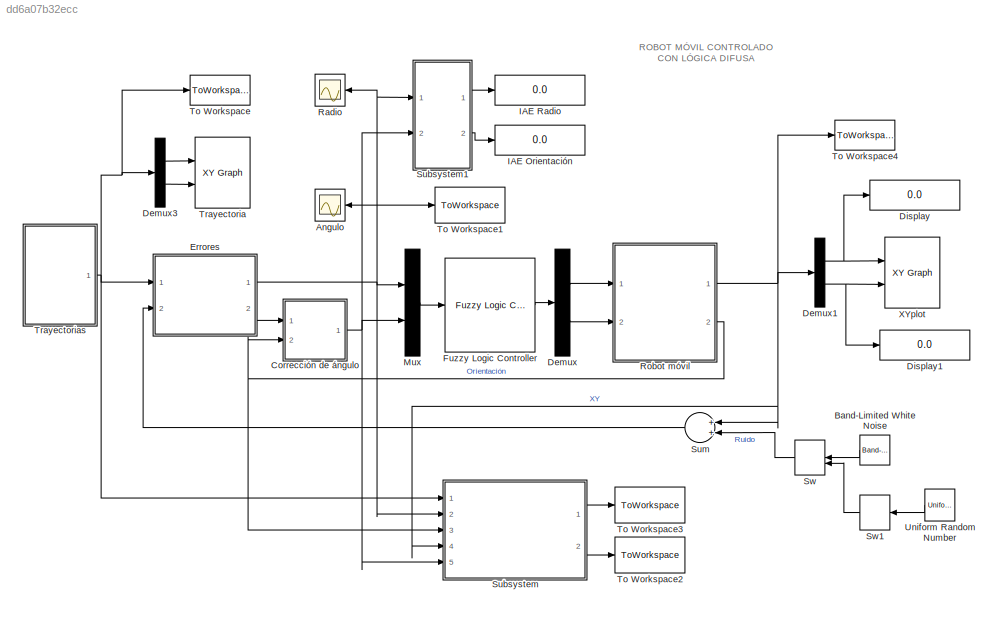
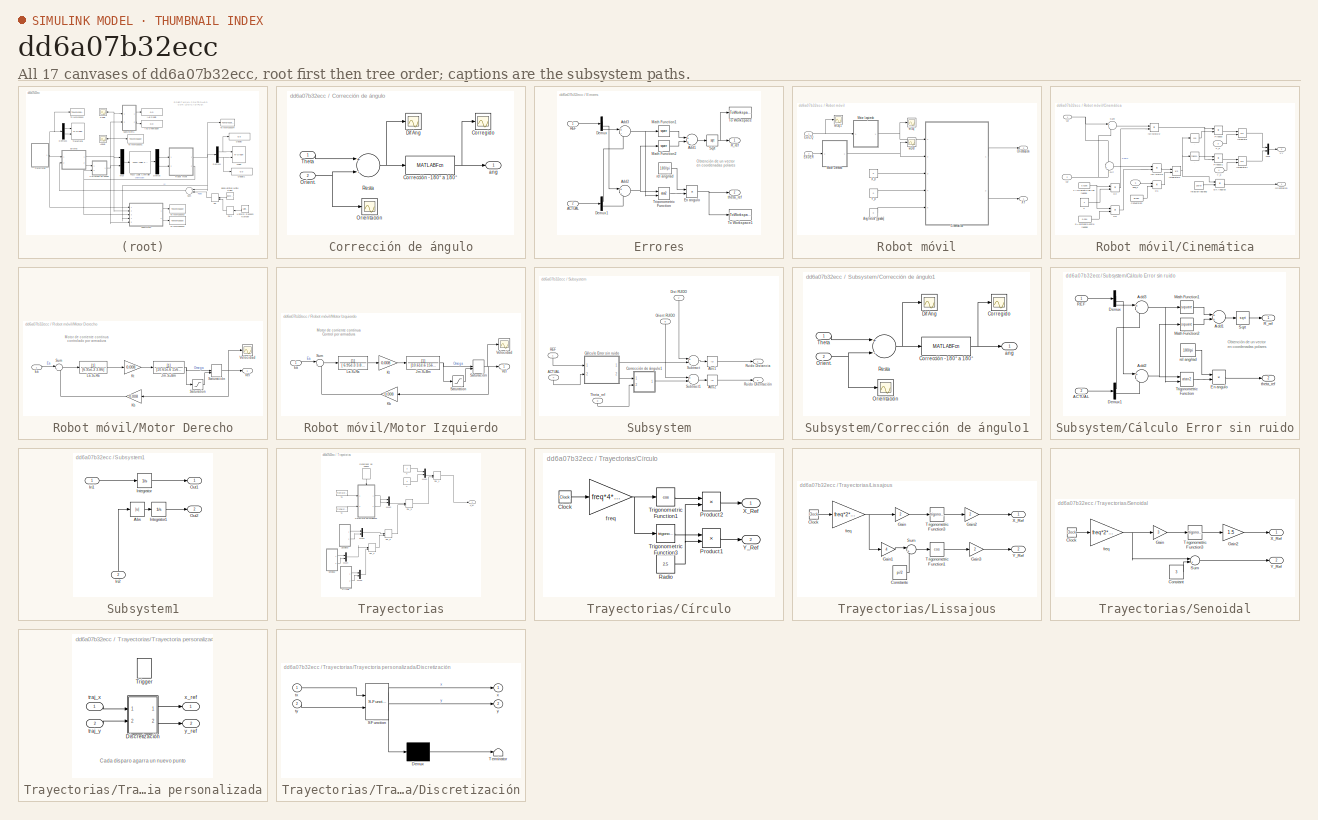
[diagram: thumbnail index - all 17 canvases of the model, root first then tree order]
MODEL slx_dd6a07b32ecc
KIND model
BLOCK [Scope] Angulo
  DataFormat = StructureWithTime
  Floating = off
  NumInputPorts = 1
  Ports = [1]
  SampleTime = 0
  SaveName = ScopeData9
  ShowLegends = off
  TimeRange = 5
  YMax = 50
  YMin = -10
  ZoomMode = yonly
BLOCK [Reference] Band-Limited White Noise  REF=simulink/Sources/Band-Limited
White Noise
  Cov = [0.003]
  Ports = [0, 1]
  SourceBlock = simulink/Sources/Band-Limited\nWhite Noise
  SourceType = Band-Limited White Noise.
  Ts = 0.1
  VectorParams1D = on
  seed = [23341]
BLOCK [SubSystem] Corrección de ángulo
  Ports = [2, 1]
  RequestExecContextInheritance = off
BLOCK [MATLABFcn] Corrección de ángulo/Corrección -180° a 180°
  MATLABFcn = mod(u+180, 360) - 180
  Ports = [1, 1]
BLOCK [Scope] Corrección de ángulo/Corregido
  DataFormat = StructureWithTime
  Floating = off
  NumInputPorts = 1
  Ports = [1]
  SampleTime = 0
  SaveName = ScopeData7
  ShowLegends = off
BLOCK [Scope] Corrección de ángulo/Dif Ang
  DataFormat = StructureWithTime
  Floating = off
  NumInputPorts = 1
  Ports = [1]
  SampleTime = 0
  SaveName = ScopeData4
  ShowLegends = off
BLOCK [Inport] Corrección de ángulo/Orient.
  IconDisplay = Port number
  Port = 2
BLOCK [Scope] Corrección de ángulo/Orientación
  DataFormat = StructureWithTime
  Floating = off
  NumInputPorts = 1
  Ports = [1]
  SampleTime = 0
  ShowLegends = off
  TimeRange = 0.4
  YMax = -38
  YMin = -45
  ZoomMode = xonly
BLOCK [Sum] Corrección de ángulo/Resta
  InputSameDT = off
  Inputs = +-
  OutDataTypeStr = Inherit: Inherit via internal rule
  Ports = [2, 1]
  SaturateOnIntegerOverflow = off
BLOCK [Inport] Corrección de ángulo/Theta
  IconDisplay = Port number
BLOCK [Outport] Corrección de ángulo/ang
  IconDisplay = Port number
BLOCK [Demux] Demux
  DisplayOption = bar
  Outputs = 2
  Ports = [1, 2]
BLOCK [Demux] Demux1
  DisplayOption = bar
  Outputs = 2
  Ports = [1, 2]
BLOCK [Demux] Demux3
  DisplayOption = bar
  Outputs = 2
  Ports = [1, 2]
BLOCK [Display] Display
  Decimation = 1
  Ports = [1]
BLOCK [Display] Display1
  Decimation = 1
  Ports = [1]
BLOCK [SubSystem] Errores
  Ports = [2, 2]
  RequestExecContextInheritance = off
BLOCK [Inport] Errores/ACTUAL
  IconDisplay = Port number
  Port = 2
BLOCK [Sum] Errores/Add1
  InputSameDT = off
  OutDataTypeStr = Inherit: Inherit via internal rule
  Ports = [2, 1]
  SaturateOnIntegerOverflow = off
BLOCK [Sum] Errores/Add2
  IconShape = round
  InputSameDT = off
  Inputs = +-
  OutDataTypeStr = Inherit: Inherit via internal rule
  Ports = [2, 1]
  SaturateOnIntegerOverflow = off
BLOCK [Sum] Errores/Add3
  IconShape = round
  InputSameDT = off
  Inputs = +-
  OutDataTypeStr = Inherit: Inherit via internal rule
  Ports = [2, 1]
  SaturateOnIntegerOverflow = off
BLOCK [Demux] Errores/Demux
  DisplayOption = bar
  Outputs = 2
  Ports = [1, 2]
BLOCK [Demux] Errores/Demux1
  DisplayOption = bar
  Outputs = 2
  Ports = [1, 2]
BLOCK [Product] Errores/En angulo
  InputSameDT = off
  OutDataTypeStr = Inherit: Inherit via internal rule
  Ports = [2, 1]
  RndMeth = Floor
  SaturateOnIntegerOverflow = off
BLOCK [Math] Errores/Math Function1
  Operator = square
  Ports = [1, 1]
BLOCK [Math] Errores/Math Function2
  Operator = square
  Ports = [1, 1]
BLOCK [Inport] Errores/REF
  IconDisplay = Port number
BLOCK [Outport] Errores/R_ref
  IconDisplay = Port number
BLOCK [Sqrt] Errores/Sqrt
BLOCK [ToWorkspace] Errores/To Workspace
  FixptAsFi = on
  MaxDataPoints = inf
  Ports = [1]
  SampleTime = -1
  Save2DSignal = 3-D array (concatenate along third dimension)
  SaveFormat = Timeseries
  VariableName = R_Ref
BLOCK [ToWorkspace] Errores/To Workspace1
  FixptAsFi = on
  MaxDataPoints = inf
  Ports = [1]
  SampleTime = -1
  Save2DSignal = 3-D array (concatenate along third dimension)
  SaveFormat = Timeseries
  VariableName = Theta_Ref
BLOCK [Trigonometry] Errores/Trigonometric Function
  Operator = atan2
  Ports = [2, 1]
BLOCK [Constant] Errores/rel ang//rad
  Value = 180/pi
BLOCK [Outport] Errores/theta_ref
  IconDisplay = Port number
  Port = 2
BLOCK [Reference] Fuzzy Logic Controller  REF=fuzblock/Fuzzy Logic   (lib defined in mdl_858b3b3e7478)
Controller
  Ports = [1, 1]
  SourceBlock = fuzblock/Fuzzy Logic \nController
  SourceType = FIS
  fis = 'MRFL_rev33.fis'
BLOCK [Display] IAE Orientación 
  Decimation = 1
  Ports = [1]
BLOCK [Display] IAE Radio
  Decimation = 1
  Ports = [1]
BLOCK [Mux] Mux
  DisplayOption = bar
  Inputs = 2
  Ports = [2, 1]
BLOCK [Scope] Radio
  DataFormat = StructureWithTime
  Floating = off
  NumInputPorts = 1
  Ports = [1]
  SampleTime = 0
  SaveName = ScopeData10
  ShowLegends = off
  TimeRange = 5
  YMin = 0
BLOCK [SubSystem] Robot móvil
  Ports = [2, 2]
  RequestExecContextInheritance = off
BLOCK [Constant] Robot móvil/Ang Inicial [grados]
  Value = 0
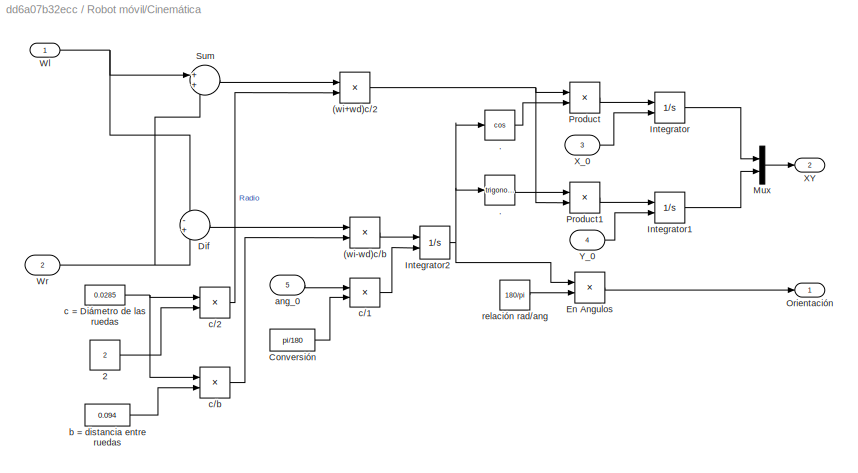
BLOCK [SubSystem] Robot móvil/Cinemática
  Description = Cinemática directa del robot diferencial
  Ports = [5, 2]
  RequestExecContextInheritance = off
BLOCK [Product] Robot móvil/Cinemática/(wi+wd)c//2
  InputSameDT = off
  OutDataTypeStr = Inherit: Inherit via internal rule
  Ports = [2, 1]
  SaturateOnIntegerOverflow = off
BLOCK [Product] Robot móvil/Cinemática/(wi-wd)c//b
  InputSameDT = off
  OutDataTypeStr = Inherit: Inherit via internal rule
  Ports = [2, 1]
  SaturateOnIntegerOverflow = off
BLOCK [Trigonometry] Robot móvil/Cinemática/.
  Ports = [1, 1]
BLOCK [Trigonometry] Robot móvil/Cinemática/. 
  Operator = cos
  Ports = [1, 1]
BLOCK [Constant] Robot móvil/Cinemática/2
  Value = 2
BLOCK [Constant] Robot móvil/Cinemática/Conversión
  Value = pi/180
BLOCK [Sum] Robot móvil/Cinemática/Dif
  IconShape = round
  InputSameDT = off
  Inputs = -+
  OutDataTypeStr = Inherit: Inherit via internal rule
  Ports = [2, 1]
  SaturateOnIntegerOverflow = off
BLOCK [Product] Robot móvil/Cinemática/En Angulos
  InputSameDT = off
  OutDataTypeStr = Inherit: Inherit via internal rule
  Ports = [2, 1]
  SaturateOnIntegerOverflow = off
BLOCK [Integrator] Robot móvil/Cinemática/Integrator
  InitialConditionSource = external
  Ports = [2, 1]
BLOCK [Integrator] Robot móvil/Cinemática/Integrator1
  InitialConditionSource = external
  Ports = [2, 1]
BLOCK [Integrator] Robot móvil/Cinemática/Integrator2
  InitialConditionSource = external
  Ports = [2, 1]
BLOCK [Mux] Robot móvil/Cinemática/Mux
  DisplayOption = bar
  Inputs = 2
  Ports = [2, 1]
BLOCK [Outport] Robot móvil/Cinemática/Orientación
  IconDisplay = Port number
BLOCK [Product] Robot móvil/Cinemática/Product
  InputSameDT = off
  OutDataTypeStr = Inherit: Inherit via internal rule
  Ports = [2, 1]
  SaturateOnIntegerOverflow = off
BLOCK [Product] Robot móvil/Cinemática/Product1
  InputSameDT = off
  OutDataTypeStr = Inherit: Inherit via internal rule
  Ports = [2, 1]
  SaturateOnIntegerOverflow = off
BLOCK [Sum] Robot móvil/Cinemática/Sum
  IconShape = round
  InputSameDT = off
  OutDataTypeStr = Inherit: Inherit via internal rule
  Ports = [2, 1]
  SaturateOnIntegerOverflow = off
BLOCK [Inport] Robot móvil/Cinemática/Wl
  IconDisplay = Port number
BLOCK [Inport] Robot móvil/Cinemática/Wr
  IconDisplay = Port number
  Port = 2
BLOCK [Outport] Robot móvil/Cinemática/XY
  IconDisplay = Port number
  Port = 2
BLOCK [Inport] Robot móvil/Cinemática/X_0
  IconDisplay = Port number
  Port = 3
BLOCK [Inport] Robot móvil/Cinemática/Y_0
  IconDisplay = Port number
  Port = 4
BLOCK [Inport] Robot móvil/Cinemática/ang_0
  IconDisplay = Port number
  Port = 5
BLOCK [Constant] Robot móvil/Cinemática/b = distancia entre ruedas
  Value = 0.094
BLOCK [Constant] Robot móvil/Cinemática/c = Diámetro de las ruedas
  Value = 0.0285
BLOCK [Product] Robot móvil/Cinemática/c//1
  InputSameDT = off
  Inputs = **
  OutDataTypeStr = Inherit: Inherit via internal rule
  Ports = [2, 1]
  RndMeth = Floor
  SaturateOnIntegerOverflow = off
BLOCK [Product] Robot móvil/Cinemática/c//2
  InputSameDT = off
  Inputs = */
  OutDataTypeStr = Inherit: Inherit via internal rule
  Ports = [2, 1]
  RndMeth = Floor
  SaturateOnIntegerOverflow = off
BLOCK [Product] Robot móvil/Cinemática/c//b
  InputSameDT = off
  Inputs = */
  OutDataTypeStr = Inherit: Inherit via internal rule
  Ports = [2, 1]
  RndMeth = Floor
  SaturateOnIntegerOverflow = off
BLOCK [Constant] Robot móvil/Cinemática/relación rad//ang 
  Value = 180/pi
BLOCK [Inport] Robot móvil/Ea DER
  IconDisplay = Port number
  Port = 2
BLOCK [Inport] Robot móvil/Ea IZQ
  IconDisplay = Port number
BLOCK [SubSystem] Robot móvil/Motor Derecho
  Ports = [1, 1]
  RequestExecContextInheritance = off
BLOCK [Inport] Robot móvil/Motor Derecho/Ea
  IconDisplay = Port number
BLOCK [TransferFcn] Robot móvil/Motor Derecho/Jm.S+Bm
  Denominator = [10.61e-6 156e-6]
BLOCK [Gain] Robot móvil/Motor Derecho/Kb
  Gain = 0.008
  OutDataTypeStr = Inherit: Inherit via internal rule
  ParamDataTypeStr = Inherit: Inherit via internal rule
  SaturateOnIntegerOverflow = off
BLOCK [Gain] Robot móvil/Motor Derecho/Kt
  Gain = 0.008
  OutDataTypeStr = Inherit: Inherit via internal rule
  ParamDataTypeStr = Inherit: Inherit via internal rule
  SaturateOnIntegerOverflow = off
BLOCK [TransferFcn] Robot móvil/Motor Derecho/La.S+Ra
  Denominator = [6.95e-3 3.86]
BLOCK [ManualSwitch] Robot móvil/Motor Derecho/Saturación
BLOCK [Saturate] Robot móvil/Motor Derecho/Saturation
  InputPortMap = u0
  LowerLimit = -30
  Ports = [1, 1]
  UpperLimit = 30
BLOCK [Sum] Robot móvil/Motor Derecho/Sum
  IconShape = round
  InputSameDT = off
  Inputs = |++
  OutDataTypeStr = Inherit: Inherit via internal rule
  Ports = [2, 1]
  SaturateOnIntegerOverflow = off
BLOCK [Outport] Robot móvil/Motor Derecho/Vel
  IconDisplay = Port number
BLOCK [Scope] Robot móvil/Motor Derecho/Velocidad
  DataFormat = StructureWithTime
  Floating = off
  NumInputPorts = 1
  Ports = [1]
  SampleTime = 0
  SaveName = ScopeData1
  ShowLegends = off
BLOCK [SubSystem] Robot móvil/Motor Izquierdo
  Ports = [1, 1]
  RequestExecContextInheritance = off
BLOCK [Inport] Robot móvil/Motor Izquierdo/Ea
  IconDisplay = Port number
BLOCK [TransferFcn] Robot móvil/Motor Izquierdo/Jm.S+Bm
  Denominator = [10.61e-6 156e-6]
BLOCK [Gain] Robot móvil/Motor Izquierdo/Kb
  Gain = 0.008
  OutDataTypeStr = Inherit: Inherit via internal rule
  ParamDataTypeStr = Inherit: Inherit via internal rule
  SaturateOnIntegerOverflow = off
BLOCK [Gain] Robot móvil/Motor Izquierdo/Kt
  Gain = 0.008
  OutDataTypeStr = Inherit: Inherit via internal rule
  ParamDataTypeStr = Inherit: Inherit via internal rule
  SaturateOnIntegerOverflow = off
BLOCK [TransferFcn] Robot móvil/Motor Izquierdo/La.S+Ra
  Denominator = [ 6.95e-3 3.86]
BLOCK [ManualSwitch] Robot móvil/Motor Izquierdo/Saturación
BLOCK [Saturate] Robot móvil/Motor Izquierdo/Saturation
  InputPortMap = u0
  LowerLimit = -30
  Ports = [1, 1]
  UpperLimit = 30
BLOCK [Sum] Robot móvil/Motor Izquierdo/Sum
  IconShape = round
  InputSameDT = off
  Inputs = |++
  OutDataTypeStr = Inherit: Inherit via internal rule
  Ports = [2, 1]
  SaturateOnIntegerOverflow = off
BLOCK [Outport] Robot móvil/Motor Izquierdo/Vel
  IconDisplay = Port number
BLOCK [Scope] Robot móvil/Motor Izquierdo/Velocidad
  DataFormat = StructureWithTime
  Floating = off
  NumInputPorts = 1
  Ports = [1]
  SampleTime = 0
  SaveName = ScopeData1
  ShowLegends = off
BLOCK [Outport] Robot móvil/Orientación
  IconDisplay = Port number
  Port = 2
BLOCK [Outport] Robot móvil/XY
  IconDisplay = Port number
BLOCK [Constant] Robot móvil/X_0 
  Value = 0
BLOCK [Constant] Robot móvil/Y_0
  Value = 0
BLOCK [Scope] Robot móvil/wDer
  DataFormat = StructureWithTime
  Floating = off
  NumInputPorts = 1
  Ports = [1]
  SampleTime = 0
  SaveName = ScopeData3
  ShowLegends = off
  TimeRange = 20
  YMax = 0.21448
  YMin = 0.194054
  ZoomMode = yonly
BLOCK [Scope] Robot móvil/wIzq 
  DataFormat = StructureWithTime
  Floating = off
  NumInputPorts = 1
  Ports = [1]
  SampleTime = 0
  SaveName = ScopeData2
  ShowLegends = off
  TimeRange = 20
  YMax = 0.21448
  YMin = 0.194054
BLOCK [Scope] Robot móvil/wIzq 1
  DataFormat = StructureWithTime
  Floating = off
  NumInputPorts = 1
  Ports = [1]
  SampleTime = 0
  SaveName = ScopeData8
  ShowLegends = off
  TimeRange = 20
  YMax = 3.25
  YMin = 0
BLOCK [SubSystem] Subsystem
  Ports = [5, 2]
  RequestExecContextInheritance = off
BLOCK [Inport] Subsystem/ACTUAL
  IconDisplay = Port number
  Port = 4
BLOCK [Abs] Subsystem/Abs1
  SaturateOnIntegerOverflow = off
BLOCK [Abs] Subsystem/Abs2
  SaturateOnIntegerOverflow = off
BLOCK [SubSystem] Subsystem/Corrección de ángulo1
  Ports = [2, 1]
  RequestExecContextInheritance = off
BLOCK [MATLABFcn] Subsystem/Corrección de ángulo1/Corrección -180° a 180°
  MATLABFcn = mod(u+180, 360) - 180
  Ports = [1, 1]
BLOCK [Scope] Subsystem/Corrección de ángulo1/Corregido
  DataFormat = StructureWithTime
  Floating = off
  NumInputPorts = 1
  Ports = [1]
  SampleTime = 0
  SaveName = ScopeData7
  ShowLegends = off
BLOCK [Scope] Subsystem/Corrección de ángulo1/Dif Ang
  DataFormat = StructureWithTime
  Floating = off
  NumInputPorts = 1
  Ports = [1]
  SampleTime = 0
  SaveName = ScopeData4
  ShowLegends = off
BLOCK [Inport] Subsystem/Corrección de ángulo1/Orient.
  IconDisplay = Port number
  Port = 2
BLOCK [Scope] Subsystem/Corrección de ángulo1/Orientación
  DataFormat = StructureWithTime
  Floating = off
  NumInputPorts = 1
  Ports = [1]
  SampleTime = 0
  ShowLegends = off
  TimeRange = 0.4
  YMax = -38
  YMin = -45
  ZoomMode = xonly
BLOCK [Sum] Subsystem/Corrección de ángulo1/Resta
  InputSameDT = off
  Inputs = +-
  OutDataTypeStr = Inherit: Inherit via internal rule
  Ports = [2, 1]
  SaturateOnIntegerOverflow = off
BLOCK [Inport] Subsystem/Corrección de ángulo1/Theta
  IconDisplay = Port number
BLOCK [Outport] Subsystem/Corrección de ángulo1/ang
  IconDisplay = Port number
BLOCK [SubSystem] Subsystem/Cálculo Error sin ruido
  Ports = [2, 2]
  RequestExecContextInheritance = off
BLOCK [Inport] Subsystem/Cálculo Error sin ruido/ACTUAL
  IconDisplay = Port number
  Port = 2
BLOCK [Sum] Subsystem/Cálculo Error sin ruido/Add1
  InputSameDT = off
  OutDataTypeStr = Inherit: Inherit via internal rule
  Ports = [2, 1]
  SaturateOnIntegerOverflow = off
BLOCK [Sum] Subsystem/Cálculo Error sin ruido/Add2
  IconShape = round
  InputSameDT = off
  Inputs = +-
  OutDataTypeStr = Inherit: Inherit via internal rule
  Ports = [2, 1]
  SaturateOnIntegerOverflow = off
BLOCK [Sum] Subsystem/Cálculo Error sin ruido/Add3
  IconShape = round
  InputSameDT = off
  Inputs = +-
  OutDataTypeStr = Inherit: Inherit via internal rule
  Ports = [2, 1]
  SaturateOnIntegerOverflow = off
BLOCK [Demux] Subsystem/Cálculo Error sin ruido/Demux
  DisplayOption = bar
  Outputs = 2
  Ports = [1, 2]
BLOCK [Demux] Subsystem/Cálculo Error sin ruido/Demux1
  DisplayOption = bar
  Outputs = 2
  Ports = [1, 2]
BLOCK [Product] Subsystem/Cálculo Error sin ruido/En angulo
  InputSameDT = off
  OutDataTypeStr = Inherit: Inherit via internal rule
  Ports = [2, 1]
  RndMeth = Floor
  SaturateOnIntegerOverflow = off
BLOCK [Math] Subsystem/Cálculo Error sin ruido/Math Function1
  Operator = square
  Ports = [1, 1]
BLOCK [Math] Subsystem/Cálculo Error sin ruido/Math Function2
  Operator = square
  Ports = [1, 1]
BLOCK [Inport] Subsystem/Cálculo Error sin ruido/REF
  IconDisplay = Port number
BLOCK [Outport] Subsystem/Cálculo Error sin ruido/R_ref
  IconDisplay = Port number
BLOCK [Sqrt] Subsystem/Cálculo Error sin ruido/Sqrt
BLOCK [Trigonometry] Subsystem/Cálculo Error sin ruido/Trigonometric Function
  Operator = atan2
  Ports = [2, 1]
BLOCK [Constant] Subsystem/Cálculo Error sin ruido/rel ang//rad
  Value = 180/pi
BLOCK [Outport] Subsystem/Cálculo Error sin ruido/theta_ref
  IconDisplay = Port number
  Port = 2
BLOCK [Inport] Subsystem/Dist RUIDO
  IconDisplay = Port number
  Port = 2
BLOCK [Inport] Subsystem/Orient RUIDO
  IconDisplay = Port number
  Port = 5
BLOCK [Inport] Subsystem/REF
  IconDisplay = Port number
BLOCK [Outport] Subsystem/Ruido Distancia
  IconDisplay = Port number
BLOCK [Outport] Subsystem/Ruido Orientación
  IconDisplay = Port number
  Port = 2
BLOCK [Sum] Subsystem/Subtract
  InputSameDT = off
  Inputs = +-
  OutDataTypeStr = Inherit: Inherit via internal rule
  Ports = [2, 1]
  SaturateOnIntegerOverflow = off
BLOCK [Sum] Subsystem/Subtract1
  InputSameDT = off
  Inputs = +-
  OutDataTypeStr = Inherit: Inherit via internal rule
  Ports = [2, 1]
  SaturateOnIntegerOverflow = off
BLOCK [Inport] Subsystem/Theta_ref
  IconDisplay = Port number
  Port = 3
BLOCK [SubSystem] Subsystem1
  Ports = [2, 2]
  RequestExecContextInheritance = off
BLOCK [Abs] Subsystem1/Abs
  SaturateOnIntegerOverflow = off
BLOCK [Inport] Subsystem1/In1
  IconDisplay = Port number
BLOCK [Inport] Subsystem1/In2
  IconDisplay = Port number
  Port = 2
BLOCK [Integrator] Subsystem1/Integrator
  Ports = [1, 1]
BLOCK [Integrator] Subsystem1/Integrator1
  Ports = [1, 1]
BLOCK [Outport] Subsystem1/Out1
  IconDisplay = Port number
BLOCK [Outport] Subsystem1/Out2
  IconDisplay = Port number
  Port = 2
BLOCK [Sum] Sum
  InputSameDT = off
  OutDataTypeStr = Inherit: Inherit via internal rule
  Ports = [2, 1]
  SaturateOnIntegerOverflow = off
BLOCK [ManualSwitch] Sw
BLOCK [ManualSwitch] Sw1
  CurrentSetting = 0
BLOCK [ToWorkspace] To Workspace
  FixptAsFi = on
  MaxDataPoints = inf
  Ports = [1]
  SampleTime = -1
  Save2DSignal = 3-D array (concatenate along third dimension)
  SaveFormat = Timeseries
  VariableName = Trayectoria
BLOCK [ToWorkspace] To Workspace1
  FixptAsFi = on
  MaxDataPoints = inf
  Ports = [1]
  SampleTime = -1
  Save2DSignal = 3-D array (concatenate along third dimension)
  SaveFormat = Timeseries
  VariableName = AngCorregido
BLOCK [ToWorkspace] To Workspace2
  FixptAsFi = on
  MaxDataPoints = inf
  Ports = [1]
  SampleTime = -1
  Save2DSignal = 3-D array (concatenate along third dimension)
  SaveFormat = Timeseries
  VariableName = Ruido_Orient
BLOCK [ToWorkspace] To Workspace3
  FixptAsFi = on
  MaxDataPoints = inf
  Ports = [1]
  SampleTime = -1
  Save2DSignal = 3-D array (concatenate along third dimension)
  SaveFormat = Timeseries
  VariableName = Ruido_Dist
BLOCK [ToWorkspace] To Workspace4
  FixptAsFi = on
  MaxDataPoints = inf
  Ports = [1]
  SampleTime = -1
  Save2DSignal = 3-D array (concatenate along third dimension)
  SaveFormat = Timeseries
  VariableName = XY_Robot
BLOCK [Reference] Trayectoria   REF=simulink/Sinks/XY Graph
  Ports = [2]
  SourceBlock = simulink/Sinks/XY Graph
  SourceType = XY scope.
  st = -1
  xmax = 4
  xmin = -4
  ymax = 4
  ymin = -4
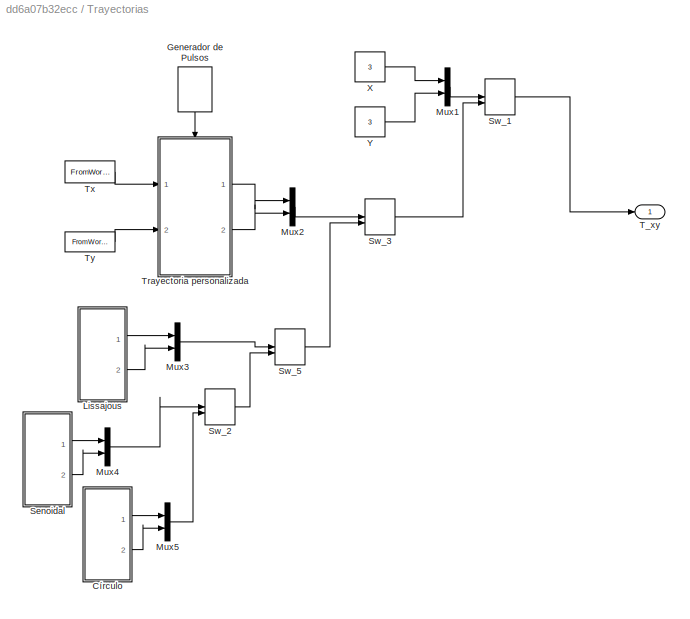
BLOCK [SubSystem] Trayectorias
  Ports = [0, 1]
  RequestExecContextInheritance = off
BLOCK [SubSystem] Trayectorias/Círculo
  AncestorBlock = roblocks/Trajectory/Circle
  Ports = [0, 2]
  RequestExecContextInheritance = off
BLOCK [Clock] Trayectorias/Círculo/Clock
BLOCK [Product] Trayectorias/Círculo/Product1
  InputSameDT = off
  OutDataTypeStr = Inherit: Inherit via internal rule
  Ports = [2, 1]
  RndMeth = Floor
  SaturateOnIntegerOverflow = off
BLOCK [Product] Trayectorias/Círculo/Product2
  InputSameDT = off
  OutDataTypeStr = Inherit: Inherit via internal rule
  Ports = [2, 1]
  RndMeth = Floor
  SaturateOnIntegerOverflow = off
BLOCK [Constant] Trayectorias/Círculo/Radio
  Value = 2.5
BLOCK [Trigonometry] Trayectorias/Círculo/Trigonometric Function1
  Operator = cos
  Ports = [1, 1]
BLOCK [Trigonometry] Trayectorias/Círculo/Trigonometric Function3
  Ports = [1, 1]
BLOCK [Outport] Trayectorias/Círculo/X_Ref
  IconDisplay = Port number
BLOCK [Outport] Trayectorias/Círculo/Y_Ref
  IconDisplay = Port number
  Port = 2
BLOCK [Gain] Trayectorias/Círculo/freq
  Gain = freq*4*2*pi
  OutDataTypeStr = Inherit: Inherit via internal rule
  ParamDataTypeStr = Inherit: Inherit via internal rule
  SaturateOnIntegerOverflow = off
BLOCK [DiscretePulseGenerator] Trayectorias/Generador de Pulsos  
  Period = 1
  Ports = [0, 1]
  PulseType = Time based
  PulseWidth = 50
BLOCK [SubSystem] Trayectorias/Lissajous
  AncestorBlock = roblocks/Trajectory/Circle
  Ports = [0, 2]
  RequestExecContextInheritance = off
BLOCK [Clock] Trayectorias/Lissajous/Clock
  DisplayTime = on
BLOCK [Constant] Trayectorias/Lissajous/Constante
  Value = pi/2
BLOCK [Gain] Trayectorias/Lissajous/Gain
  Gain = 2
  OutDataTypeStr = Inherit: Inherit via internal rule
  ParamDataTypeStr = Inherit: Inherit via internal rule
  SaturateOnIntegerOverflow = off
BLOCK [Gain] Trayectorias/Lissajous/Gain1
  Gain = 4
  OutDataTypeStr = Inherit: Inherit via internal rule
  ParamDataTypeStr = Inherit: Inherit via internal rule
  SaturateOnIntegerOverflow = off
BLOCK [Gain] Trayectorias/Lissajous/Gain2
  Gain = 2
  OutDataTypeStr = Inherit: Inherit via internal rule
  ParamDataTypeStr = Inherit: Inherit via internal rule
  SaturateOnIntegerOverflow = off
BLOCK [Gain] Trayectorias/Lissajous/Gain3
  Gain = 2
  OutDataTypeStr = Inherit: Inherit via internal rule
  ParamDataTypeStr = Inherit: Inherit via internal rule
  SaturateOnIntegerOverflow = off
BLOCK [Sum] Trayectorias/Lissajous/Sum
  IconShape = round
  InputSameDT = off
  Inputs = |++
  OutDataTypeStr = Inherit: Inherit via internal rule
  Ports = [2, 1]
  SaturateOnIntegerOverflow = off
BLOCK [Trigonometry] Trayectorias/Lissajous/Trigonometric Function1
  Operator = cos
  Ports = [1, 1]
BLOCK [Trigonometry] Trayectorias/Lissajous/Trigonometric Function3
  Ports = [1, 1]
BLOCK [Outport] Trayectorias/Lissajous/X_Ref
  IconDisplay = Port number
BLOCK [Outport] Trayectorias/Lissajous/Y_Ref
  IconDisplay = Port number
  Port = 2
BLOCK [Gain] Trayectorias/Lissajous/freq
  Gain = freq*2*pi
  OutDataTypeStr = Inherit: Inherit via internal rule
  ParamDataTypeStr = Inherit: Inherit via internal rule
  SaturateOnIntegerOverflow = off
BLOCK [Mux] Trayectorias/Mux1
  DisplayOption = bar
  Inputs = 2
  Ports = [2, 1]
BLOCK [Mux] Trayectorias/Mux2
  DisplayOption = bar
  Inputs = 2
  Ports = [2, 1]
BLOCK [Mux] Trayectorias/Mux3
  DisplayOption = bar
  Inputs = 2
  Ports = [2, 1]
BLOCK [Mux] Trayectorias/Mux4
  DisplayOption = bar
  Inputs = 2
  Ports = [2, 1]
BLOCK [Mux] Trayectorias/Mux5
  DisplayOption = bar
  Inputs = 2
  Ports = [2, 1]
BLOCK [SubSystem] Trayectorias/Senoidal
  AncestorBlock = roblocks/Trajectory/Circle
  Ports = [0, 2]
  RequestExecContextInheritance = off
BLOCK [Clock] Trayectorias/Senoidal/Clock
BLOCK [Constant] Trayectorias/Senoidal/Constant
  Value = 3
BLOCK [Gain] Trayectorias/Senoidal/Gain
  Gain = 3
  OutDataTypeStr = Inherit: Inherit via internal rule
  ParamDataTypeStr = Inherit: Inherit via internal rule
  SaturateOnIntegerOverflow = off
BLOCK [Gain] Trayectorias/Senoidal/Gain2
  Gain = 1.5
  OutDataTypeStr = Inherit: Inherit via internal rule
  ParamDataTypeStr = Inherit: Inherit via internal rule
  SaturateOnIntegerOverflow = off
BLOCK [Sum] Trayectorias/Senoidal/Sum
  IconShape = round
  InputSameDT = off
  Inputs = |+-
  OutDataTypeStr = Inherit: Inherit via internal rule
  Ports = [2, 1]
  SaturateOnIntegerOverflow = off
BLOCK [Trigonometry] Trayectorias/Senoidal/Trigonometric Function3
  Ports = [1, 1]
BLOCK [Outport] Trayectorias/Senoidal/X_Ref
  IconDisplay = Port number
BLOCK [Outport] Trayectorias/Senoidal/Y_Ref
  IconDisplay = Port number
  Port = 2
BLOCK [Gain] Trayectorias/Senoidal/freq
  Gain = freq*2*pi
  OutDataTypeStr = Inherit: Inherit via internal rule
  ParamDataTypeStr = Inherit: Inherit via internal rule
  SaturateOnIntegerOverflow = off
BLOCK [ManualSwitch] Trayectorias/Sw_1
BLOCK [ManualSwitch] Trayectorias/Sw_2
  CurrentSetting = 0
BLOCK [ManualSwitch] Trayectorias/Sw_3
BLOCK [ManualSwitch] Trayectorias/Sw_5
  CurrentSetting = 0
BLOCK [Outport] Trayectorias/T_xy
  IconDisplay = Port number
BLOCK [SubSystem] Trayectorias/Trayectoria personalizada
  Ports = [2, 2, 0, 1]
  RequestExecContextInheritance = off
BLOCK [SubSystem] Trayectorias/Trayectoria personalizada/Discretización
  ErrorFcn = Stateflow.Translate.translate
  PermitHierarchicalResolution = ExplicitOnly
  Ports = [2, 2]
  RequestExecContextInheritance = off
  SFBlockType = MATLAB Function
  TreatAsAtomicUnit = on
BLOCK [Demux] Trayectorias/Trayectoria personalizada/Discretización/ Demux 
  Outputs = 1
  Ports = [1, 1]
BLOCK [S-Function] Trayectorias/Trayectoria personalizada/Discretización/ SFunction 
  EnableBusSupport = on
  FunctionName = sf_sfun
  PortCounts = [2 3]
  Ports = [2, 3]
  Tag = Stateflow S-Function FuzzyLogicRobot_rev3 4
BLOCK [Terminator] Trayectorias/Trayectoria personalizada/Discretización/ Terminator 
BLOCK [Inport] Trayectorias/Trayectoria personalizada/Discretización/tx
  IconDisplay = Port number
BLOCK [Inport] Trayectorias/Trayectoria personalizada/Discretización/ty
  IconDisplay = Port number
  Port = 2
BLOCK [Outport] Trayectorias/Trayectoria personalizada/Discretización/x
  IconDisplay = Port number
BLOCK [Outport] Trayectorias/Trayectoria personalizada/Discretización/y
  IconDisplay = Port number
  Port = 2
BLOCK [TriggerPort] Trayectorias/Trayectoria personalizada/Trigger
  Ports = []
  StatesWhenEnabling = held
BLOCK [Inport] Trayectorias/Trayectoria personalizada/traj_x
  IconDisplay = Port number
BLOCK [Inport] Trayectorias/Trayectoria personalizada/traj_y
  IconDisplay = Port number
  Port = 2
BLOCK [Outport] Trayectorias/Trayectoria personalizada/x_ref
  IconDisplay = Port number
BLOCK [Outport] Trayectorias/Trayectoria personalizada/y_ref
  IconDisplay = Port number
  Port = 2
BLOCK [FromWorkspace] Trayectorias/Tx
  SampleTime = 0
  VariableName = trayx
  ZeroCross = on
BLOCK [FromWorkspace] Trayectorias/Ty
  SampleTime = 0
  VariableName = trayy
  ZeroCross = on
BLOCK [Constant] Trayectorias/X
  Value = 3
BLOCK [Constant] Trayectorias/Y
  Value = 3
BLOCK [UniformRandomNumber] Uniform Random Number
  SampleTime = 0.1
BLOCK [Reference] XYplot  REF=simulink/Sinks/XY Graph
  Ports = [2]
  SourceBlock = simulink/Sinks/XY Graph
  SourceType = XY scope.
  st = -1
  xmax = 4
  xmin = -4
  ymax = 4
  ymin = -4
ANNOTATION (root): ROBOT MÓVIL CONTROLADO CON LÓGICA DIFUSA
ANNOTATION Errores: Obtención de un vector en coordenadas polares
ANNOTATION Robot móvil/Motor Derecho: Motor de corriente continua controlado por armadura
ANNOTATION Robot móvil/Motor Izquierdo: Motor de corriente continua Control por armadura
ANNOTATION Subsystem/Cálculo Error sin ruido: Obtención de un vector en coordenadas polares
ANNOTATION Trayectorias/Trayectoria personalizada: Cada disparo agarra un nuevo punto
LINE Band-Limited White Noise:1 -> Sw:1
NET Corrección de ángulo/Corrección -180° a 180°:1 -> Corrección de ángulo/Corregido:1, Corrección de ángulo/ang:1
NET Corrección de ángulo/Orient.:1 -> Corrección de ángulo/Orientación:1, Corrección de ángulo/Resta:2
NET Corrección de ángulo/Resta:1 -> Corrección de ángulo/Corrección -180° a 180°:1, Corrección de ángulo/Dif Ang:1
LINE Corrección de ángulo/Theta:1 -> Corrección de ángulo/Resta:1
NET Corrección de ángulo:1 -> Angulo:1, Mux:2, Subsystem1:2, Subsystem:5, To Workspace1:1
NET Demux1:1 -> Display:1, XYplot:1
NET Demux1:2 -> Display1:1, XYplot:2
LINE Demux3:1 -> Trayectoria :1
LINE Demux3:2 -> Trayectoria :2
LINE Demux:1 -> Robot móvil:1
LINE Demux:2 -> Robot móvil:2
LINE Errores/ACTUAL:1 -> Errores/Demux1:1
LINE Errores/Add1:1 -> Errores/Sqrt:1
NET Errores/Add2:1 -> Errores/Math Function2:1, Errores/Trigonometric Function:1
NET Errores/Add3:1 -> Errores/Math Function1:1, Errores/Trigonometric Function:2
LINE Errores/Demux1:1 -> Errores/Add3:2
LINE Errores/Demux1:2 -> Errores/Add2:2
LINE Errores/Demux:1 -> Errores/Add3:1
LINE Errores/Demux:2 -> Errores/Add2:1
NET Errores/En angulo:1 -> Errores/To Workspace1:1, Errores/theta_ref:1
LINE Errores/Math Function1:1 -> Errores/Add1:1
LINE Errores/Math Function2:1 -> Errores/Add1:2
LINE Errores/REF:1 -> Errores/Demux:1
NET Errores/Sqrt:1 -> Errores/R_ref:1, Errores/To Workspace:1
LINE Errores/Trigonometric Function:1 -> Errores/En angulo:2
LINE Errores/rel ang//rad:1 -> Errores/En angulo:1
NET Errores:1 -> Mux:1, Radio:1, Subsystem1:1, Subsystem:2
LINE Errores:2 -> Corrección de ángulo:1
LINE Fuzzy Logic Controller:1 -> Demux:1
LINE Mux:1 -> Fuzzy Logic Controller:1
LINE Robot móvil/Ang Inicial [grados]:1 -> Robot móvil/Cinemática:5
NET Robot móvil/Cinemática/(wi+wd)c//2:1 -> Robot móvil/Cinemática/Product1:2, Robot móvil/Cinemática/Product:1
LINE Robot móvil/Cinemática/(wi-wd)c//b:1 -> Robot móvil/Cinemática/Integrator2:1
LINE Robot móvil/Cinemática/. :1 -> Robot móvil/Cinemática/Product:2
LINE Robot móvil/Cinemática/.:1 -> Robot móvil/Cinemática/Product1:1
LINE Robot móvil/Cinemática/2:1 -> Robot móvil/Cinemática/c//2:2
LINE Robot móvil/Cinemática/Conversión:1 -> Robot móvil/Cinemática/c//1:2
LINE Robot móvil/Cinemática/Dif:1 -> Robot móvil/Cinemática/(wi-wd)c//b:1
LINE Robot móvil/Cinemática/En Angulos:1 -> Robot móvil/Cinemática/Orientación:1
LINE Robot móvil/Cinemática/Integrator1:1 -> Robot móvil/Cinemática/Mux:2
NET Robot móvil/Cinemática/Integrator2:1 -> Robot móvil/Cinemática/. :1, Robot móvil/Cinemática/.:1, Robot móvil/Cinemática/En Angulos:1
LINE Robot móvil/Cinemática/Integrator:1 -> Robot móvil/Cinemática/Mux:1
LINE Robot móvil/Cinemática/Mux:1 -> Robot móvil/Cinemática/XY:1
LINE Robot móvil/Cinemática/Product1:1 -> Robot móvil/Cinemática/Integrator1:1
LINE Robot móvil/Cinemática/Product:1 -> Robot móvil/Cinemática/Integrator:1
LINE Robot móvil/Cinemática/Sum:1 -> Robot móvil/Cinemática/(wi+wd)c//2:1
NET Robot móvil/Cinemática/Wl:1 -> Robot móvil/Cinemática/Dif:1, Robot móvil/Cinemática/Sum:1
NET Robot móvil/Cinemática/Wr:1 -> Robot móvil/Cinemática/Dif:2, Robot móvil/Cinemática/Sum:2
LINE Robot móvil/Cinemática/X_0:1 -> Robot móvil/Cinemática/Integrator:2
LINE Robot móvil/Cinemática/Y_0:1 -> Robot móvil/Cinemática/Integrator1:2
LINE Robot móvil/Cinemática/ang_0:1 -> Robot móvil/Cinemática/c//1:1
LINE Robot móvil/Cinemática/b = distancia entre ruedas:1 -> Robot móvil/Cinemática/c//b:2
NET Robot móvil/Cinemática/c = Diámetro de las ruedas:1 -> Robot móvil/Cinemática/c//2:1, Robot móvil/Cinemática/c//b:1
LINE Robot móvil/Cinemática/c//1:1 -> Robot móvil/Cinemática/Integrator2:2
LINE Robot móvil/Cinemática/c//2:1 -> Robot móvil/Cinemática/(wi+wd)c//2:2
LINE Robot móvil/Cinemática/c//b:1 -> Robot móvil/Cinemática/(wi-wd)c//b:2
LINE Robot móvil/Cinemática/relación rad//ang :1 -> Robot móvil/Cinemática/En Angulos:2
LINE Robot móvil/Cinemática:1 -> Robot móvil/Orientación:1
LINE Robot móvil/Cinemática:2 -> Robot móvil/XY:1
LINE Robot móvil/Ea DER:1 -> Robot móvil/Motor Derecho:1
NET Robot móvil/Ea IZQ:1 -> Robot móvil/Motor Izquierdo:1, Robot móvil/wIzq 1:1
LINE Robot móvil/Motor Derecho/Ea:1 -> Robot móvil/Motor Derecho/Sum:1
NET Robot móvil/Motor Derecho/Jm.S+Bm:1 -> Robot móvil/Motor Derecho/Saturación:1, Robot móvil/Motor Derecho/Saturation:1
LINE Robot móvil/Motor Derecho/Kb:1 -> Robot móvil/Motor Derecho/Sum:2
LINE Robot móvil/Motor Derecho/Kt:1 -> Robot móvil/Motor Derecho/Jm.S+Bm:1
LINE Robot móvil/Motor Derecho/La.S+Ra:1 -> Robot móvil/Motor Derecho/Kt:1
NET Robot móvil/Motor Derecho/Saturación:1 -> Robot móvil/Motor Derecho/Kb:1, Robot móvil/Motor Derecho/Vel:1, Robot móvil/Motor Derecho/Velocidad:1
LINE Robot móvil/Motor Derecho/Saturation:1 -> Robot móvil/Motor Derecho/Saturación:2
LINE Robot móvil/Motor Derecho/Sum:1 -> Robot móvil/Motor Derecho/La.S+Ra:1
NET Robot móvil/Motor Derecho:1 -> Robot móvil/Cinemática:2, Robot móvil/wDer:1
LINE Robot móvil/Motor Izquierdo/Ea:1 -> Robot móvil/Motor Izquierdo/Sum:1
NET Robot móvil/Motor Izquierdo/Jm.S+Bm:1 -> Robot móvil/Motor Izquierdo/Saturación:1, Robot móvil/Motor Izquierdo/Saturation:1
LINE Robot móvil/Motor Izquierdo/Kb:1 -> Robot móvil/Motor Izquierdo/Sum:2
LINE Robot móvil/Motor Izquierdo/Kt:1 -> Robot móvil/Motor Izquierdo/Jm.S+Bm:1
LINE Robot móvil/Motor Izquierdo/La.S+Ra:1 -> Robot móvil/Motor Izquierdo/Kt:1
NET Robot móvil/Motor Izquierdo/Saturación:1 -> Robot móvil/Motor Izquierdo/Kb:1, Robot móvil/Motor Izquierdo/Vel:1, Robot móvil/Motor Izquierdo/Velocidad:1
LINE Robot móvil/Motor Izquierdo/Saturation:1 -> Robot móvil/Motor Izquierdo/Saturación:2
LINE Robot móvil/Motor Izquierdo/Sum:1 -> Robot móvil/Motor Izquierdo/La.S+Ra:1
NET Robot móvil/Motor Izquierdo:1 -> Robot móvil/Cinemática:1, Robot móvil/wIzq :1
LINE Robot móvil/X_0 :1 -> Robot móvil/Cinemática:3
LINE Robot móvil/Y_0:1 -> Robot móvil/Cinemática:4
NET Robot móvil:1 -> Demux1:1, Subsystem:4, Sum:1, To Workspace4:1
NET Robot móvil:2 -> Corrección de ángulo:2, Subsystem:3
LINE Subsystem/ACTUAL:1 -> Subsystem/Cálculo Error sin ruido:2
LINE Subsystem/Abs1:1 -> Subsystem/Ruido Distancia:1
LINE Subsystem/Abs2:1 -> Subsystem/Ruido Orientación:1
NET Subsystem/Corrección de ángulo1/Corrección -180° a 180°:1 -> Subsystem/Corrección de ángulo1/Corregido:1, Subsystem/Corrección de ángulo1/ang:1
NET Subsystem/Corrección de ángulo1/Orient.:1 -> Subsystem/Corrección de ángulo1/Orientación:1, Subsystem/Corrección de ángulo1/Resta:2
NET Subsystem/Corrección de ángulo1/Resta:1 -> Subsystem/Corrección de ángulo1/Corrección -180° a 180°:1, Subsystem/Corrección de ángulo1/Dif Ang:1
LINE Subsystem/Corrección de ángulo1/Theta:1 -> Subsystem/Corrección de ángulo1/Resta:1
LINE Subsystem/Corrección de ángulo1:1 -> Subsystem/Subtract1:2
LINE Subsystem/Cálculo Error sin ruido/ACTUAL:1 -> Subsystem/Cálculo Error sin ruido/Demux1:1
LINE Subsystem/Cálculo Error sin ruido/Add1:1 -> Subsystem/Cálculo Error sin ruido/Sqrt:1
NET Subsystem/Cálculo Error sin ruido/Add2:1 -> Subsystem/Cálculo Error sin ruido/Math Function2:1, Subsystem/Cálculo Error sin ruido/Trigonometric Function:1
NET Subsystem/Cálculo Error sin ruido/Add3:1 -> Subsystem/Cálculo Error sin ruido/Math Function1:1, Subsystem/Cálculo Error sin ruido/Trigonometric Function:2
LINE Subsystem/Cálculo Error sin ruido/Demux1:1 -> Subsystem/Cálculo Error sin ruido/Add3:2
LINE Subsystem/Cálculo Error sin ruido/Demux1:2 -> Subsystem/Cálculo Error sin ruido/Add2:2
LINE Subsystem/Cálculo Error sin ruido/Demux:1 -> Subsystem/Cálculo Error sin ruido/Add3:1
LINE Subsystem/Cálculo Error sin ruido/Demux:2 -> Subsystem/Cálculo Error sin ruido/Add2:1
LINE Subsystem/Cálculo Error sin ruido/En angulo:1 -> Subsystem/Cálculo Error sin ruido/theta_ref:1
LINE Subsystem/Cálculo Error sin ruido/Math Function1:1 -> Subsystem/Cálculo Error sin ruido/Add1:1
LINE Subsystem/Cálculo Error sin ruido/Math Function2:1 -> Subsystem/Cálculo Error sin ruido/Add1:2
LINE Subsystem/Cálculo Error sin ruido/REF:1 -> Subsystem/Cálculo Error sin ruido/Demux:1
LINE Subsystem/Cálculo Error sin ruido/Sqrt:1 -> Subsystem/Cálculo Error sin ruido/R_ref:1
LINE Subsystem/Cálculo Error sin ruido/Trigonometric Function:1 -> Subsystem/Cálculo Error sin ruido/En angulo:2
LINE Subsystem/Cálculo Error sin ruido/rel ang//rad:1 -> Subsystem/Cálculo Error sin ruido/En angulo:1
LINE Subsystem/Cálculo Error sin ruido:1 -> Subsystem/Subtract:2
LINE Subsystem/Cálculo Error sin ruido:2 -> Subsystem/Corrección de ángulo1:1
LINE Subsystem/Dist RUIDO:1 -> Subsystem/Subtract:1
LINE Subsystem/Orient RUIDO:1 -> Subsystem/Subtract1:1
LINE Subsystem/REF:1 -> Subsystem/Cálculo Error sin ruido:1
LINE Subsystem/Subtract1:1 -> Subsystem/Abs2:1
LINE Subsystem/Subtract:1 -> Subsystem/Abs1:1
LINE Subsystem/Theta_ref:1 -> Subsystem/Corrección de ángulo1:2
LINE Subsystem1/Abs:1 -> Subsystem1/Integrator1:1
LINE Subsystem1/In1:1 -> Subsystem1/Integrator:1
LINE Subsystem1/In2:1 -> Subsystem1/Abs:1
LINE Subsystem1/Integrator1:1 -> Subsystem1/Out2:1
LINE Subsystem1/Integrator:1 -> Subsystem1/Out1:1
LINE Subsystem1:1 -> IAE Radio:1
LINE Subsystem1:2 -> IAE Orientación :1
LINE Subsystem:1 -> To Workspace3:1
LINE Subsystem:2 -> To Workspace2:1
LINE Sum:1 -> Errores:2
LINE Sw1:1 -> Sw:2
LINE Sw:1 -> Sum:2
LINE Trayectorias/Círculo:1 -> Trayectorias/Mux5:1
LINE Trayectorias/Círculo:2 -> Trayectorias/Mux5:2
LINE Trayectorias/Generador de Pulsos  :1 -> Trayectorias/Trayectoria personalizada:trigger
LINE Trayectorias/Lissajous:1 -> Trayectorias/Mux3:1
LINE Trayectorias/Lissajous:2 -> Trayectorias/Mux3:2
LINE Trayectorias/Mux1:1 -> Trayectorias/Sw_1:1
LINE Trayectorias/Mux2:1 -> Trayectorias/Sw_3:1
LINE Trayectorias/Mux3:1 -> Trayectorias/Sw_5:1
LINE Trayectorias/Mux4:1 -> Trayectorias/Sw_2:1
LINE Trayectorias/Mux5:1 -> Trayectorias/Sw_2:2
LINE Trayectorias/Senoidal:1 -> Trayectorias/Mux4:1
LINE Trayectorias/Senoidal:2 -> Trayectorias/Mux4:2
LINE Trayectorias/Sw_1:1 -> Trayectorias/T_xy:1
LINE Trayectorias/Sw_2:1 -> Trayectorias/Sw_5:2
LINE Trayectorias/Sw_3:1 -> Trayectorias/Sw_1:2
LINE Trayectorias/Sw_5:1 -> Trayectorias/Sw_3:2
LINE Trayectorias/Trayectoria personalizada/Discretización:1 -> Trayectorias/Trayectoria personalizada/x_ref:1
LINE Trayectorias/Trayectoria personalizada/Discretización:2 -> Trayectorias/Trayectoria personalizada/y_ref:1
LINE Trayectorias/Trayectoria personalizada/traj_x:1 -> Trayectorias/Trayectoria personalizada/Discretización:1
LINE Trayectorias/Trayectoria personalizada/traj_y:1 -> Trayectorias/Trayectoria personalizada/Discretización:2
LINE Trayectorias/Trayectoria personalizada:1 -> Trayectorias/Mux2:1
LINE Trayectorias/Trayectoria personalizada:2 -> Trayectorias/Mux2:2
LINE Trayectorias/Tx:1 -> Trayectorias/Trayectoria personalizada:1
LINE Trayectorias/Ty:1 -> Trayectorias/Trayectoria personalizada:2
LINE Trayectorias/X:1 -> Trayectorias/Mux1:1
LINE Trayectorias/Y:1 -> Trayectorias/Mux1:2
NET Trayectorias:1 -> Demux3:1, Errores:1, Subsystem:1, To Workspace:1
LINE Uniform Random Number:1 -> Sw1:1
note: NET lines group one-source signal fan-out (src -> all destinations, sorted); 1:1 wires keep LINE
